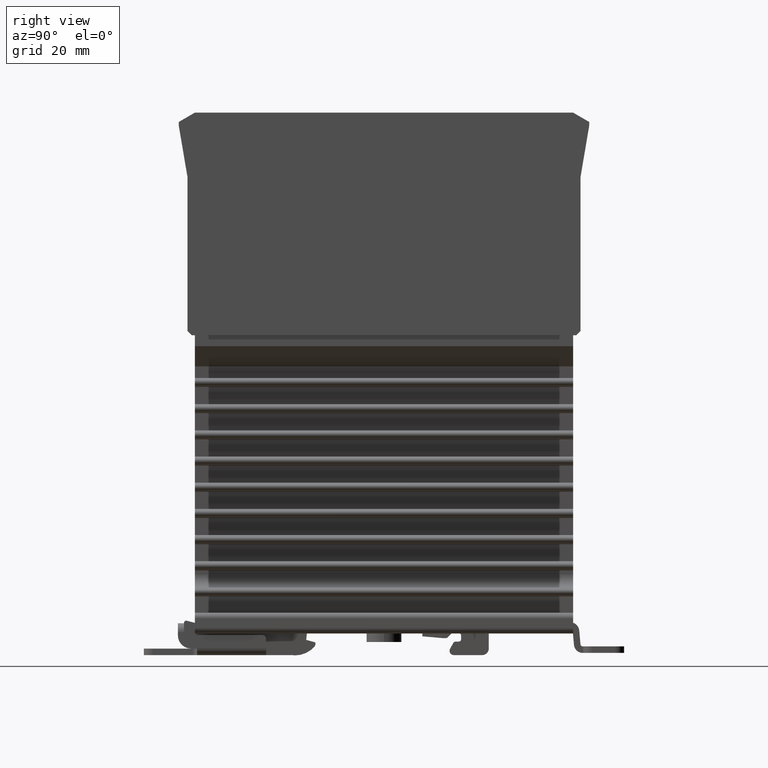
[diagram: clean part render]
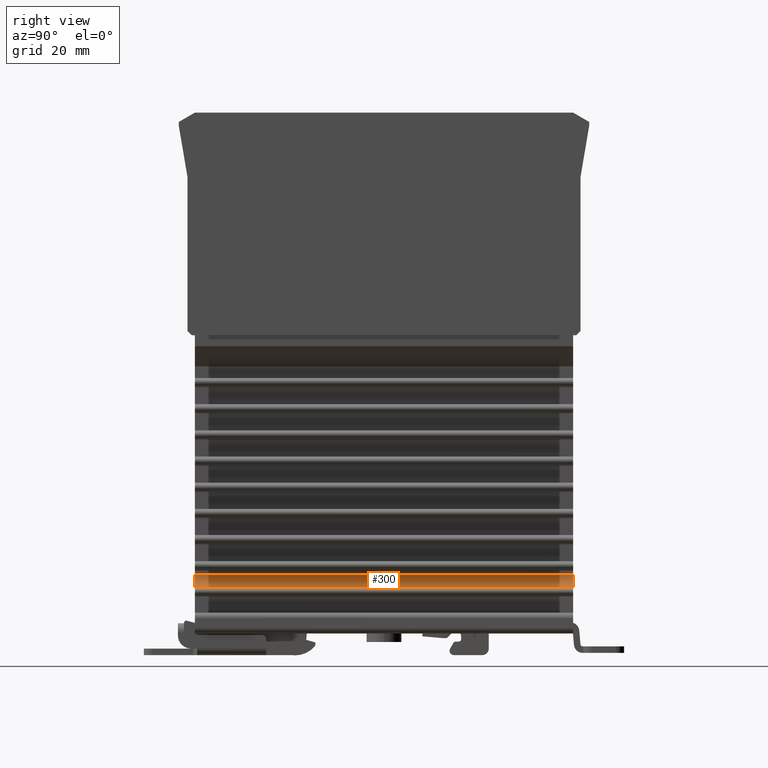
[diagram: same view with one face highlighted and labeled with its STEP entity id]
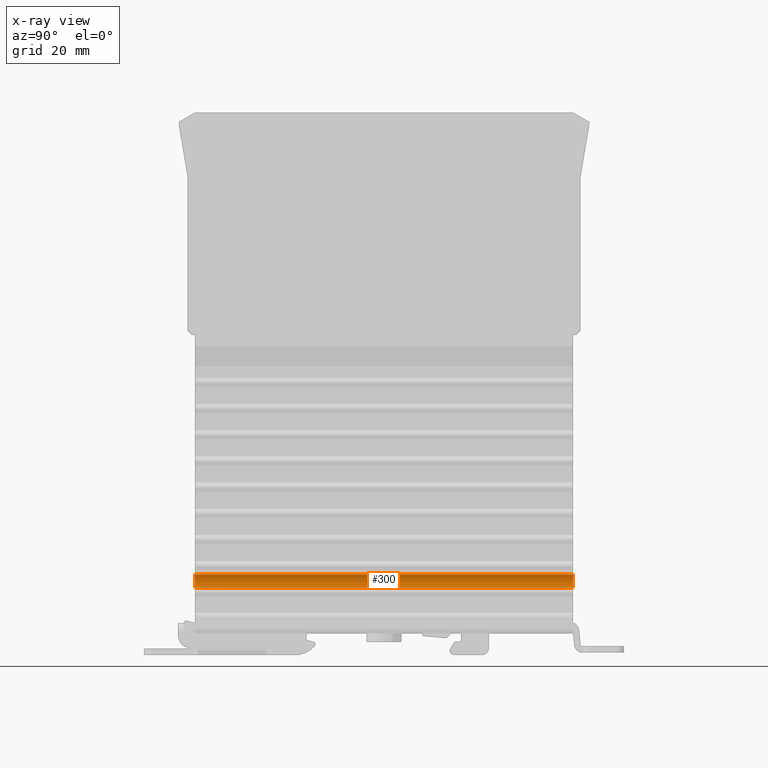
[diagram: x-ray of the same camera — body ghosted, the highlighted face saturated]
A machine part, right view. The second image highlights one B-rep face of the part: STEP entity #300.
The next image is the same camera in x-ray: the body ghosted, the highlighted face saturated — about 0% of this face is hidden behind the body in this view.
In plain terms, the highlighted cylindrical surface (edge-blend (fillet) strip) has radius 3 mm, axis along (0, 1, 0).
Its self-contained STEP definition (entity closure, byte-faithful):
#300 = ADVANCED_FACE ( 'NONE', ( #10707 ), #1838, .F. ) ;
#360 = CIRCLE ( 'NONE', #9558, 0.1181102362204725503 ) ;
#693 = DIRECTION ( 'NONE',  ( 0.000000000000000000, 0.000000000000000000, 1.000000000000000000 ) ) ;
#1571 = VERTEX_POINT ( 'NONE', #7965 ) ;
#1792 = CARTESIAN_POINT ( 'NONE',  ( 0.05252457940297086680, 1.704724409448818978, -2.158395281671881882 ) ) ;
#1838 = CYLINDRICAL_SURFACE ( 'NONE', #15429, 0.1181102362204725503 ) ;
#1999 = DIRECTION ( 'NONE',  ( 0.000000000000000000, 1.000000000000000000, 0.000000000000000000 ) ) ;
#2145 = EDGE_LOOP ( 'NONE', ( #10527, #13154, #13244, #8903 ) ) ;
#2183 = CARTESIAN_POINT ( 'NONE',  ( 0.1705628660587696632, -1.704724409448818978, -2.162517269471389891 ) ) ;
#2903 = CARTESIAN_POINT ( 'NONE',  ( 0.1378022468257801003, 0.5682414698162751021, -2.275791481839859021 ) ) ;
#3089 = VECTOR ( 'NONE', #9542, 39.37007874015748143 ) ;
#3968 = CARTESIAN_POINT ( 'NONE',  ( 0.1378022468257801003, -0.5682414698162718825, -2.275791481839859021 ) ) ;
#4383 = EDGE_CURVE ( 'NONE', #12443, #9986, #4519, .T. ) ;
#4519 = CIRCLE ( 'NONE', #5827, 0.1181102362204725503 ) ;
#4524 = CARTESIAN_POINT ( 'NONE',  ( 0.05252457940297094313, 0.000000000000000000, -2.158395281671881882 ) ) ;
#5411 = CARTESIAN_POINT ( 'NONE',  ( 0.1377987612081647828, 1.704724409448818978, -2.275891296868720381 ) ) ;
#5542 = CARTESIAN_POINT ( 'NONE',  ( 0.1705628660587696632, 1.704724409448818978, -2.162517269471389891 ) ) ;
#5827 = AXIS2_PLACEMENT_3D ( 'NONE', #5542, #14356, #693 ) ;
#6271 = VERTEX_POINT ( 'NONE', #14556 ) ;
#7181 = DIRECTION ( 'NONE',  ( 0.000000000000000000, 1.000000000000000000, 0.000000000000000000 ) ) ;
#7965 = CARTESIAN_POINT ( 'NONE',  ( 0.1377987612081647828, -1.704724409448818978, -2.275891296868720381 ) ) ;
#8903 = ORIENTED_EDGE ( 'NONE', *, *, #4383, .T. ) ;
#9311 = DIRECTION ( 'NONE',  ( 0.000000000000000000, 0.000000000000000000, 1.000000000000000000 ) ) ;
#9542 = DIRECTION ( 'NONE',  ( 0.000000000000000000, 1.000000000000000000, 0.000000000000000000 ) ) ;
#9558 = AXIS2_PLACEMENT_3D ( 'NONE', #2183, #7181, #12212 ) ;
#9986 = VERTEX_POINT ( 'NONE', #1792 ) ;
#10527 = ORIENTED_EDGE ( 'NONE', *, *, #15784, .F. ) ;
#10707 = FACE_OUTER_BOUND ( 'NONE', #2145, .T. ) ;
#11095 = EDGE_CURVE ( 'NONE', #12443, #1571, #14643, .T. ) ;
#11708 = EDGE_CURVE ( 'NONE', #1571, #6271, #360, .T. ) ;
#12212 = DIRECTION ( 'NONE',  ( 0.000000000000000000, 0.000000000000000000, 1.000000000000000000 ) ) ;
#12443 = VERTEX_POINT ( 'NONE', #5411 ) ;
#12836 = CARTESIAN_POINT ( 'NONE',  ( 0.1377987612081647828, 1.704724409448818978, -2.275891296868720381 ) ) ;
#13154 = ORIENTED_EDGE ( 'NONE', *, *, #11708, .F. ) ;
#13244 = ORIENTED_EDGE ( 'NONE', *, *, #11095, .F. ) ;
#13989 = CARTESIAN_POINT ( 'NONE',  ( 0.1377987612081647828, -1.704724409448818978, -2.275891296868720381 ) ) ;
#14356 = DIRECTION ( 'NONE',  ( 0.000000000000000000, 1.000000000000000000, 0.000000000000000000 ) ) ;
#14556 = CARTESIAN_POINT ( 'NONE',  ( 0.05252457940297086680, -1.704724409448818978, -2.158395281671881882 ) ) ;
#14643 = B_SPLINE_CURVE_WITH_KNOTS ( 'NONE', 3,
 ( #12836, #2903, #3968, #13989 ),
 .UNSPECIFIED., .F., .F.,
 ( 4, 4 ),
 ( 0.000000000000000000, 1.000000000000000000 ),
 .UNSPECIFIED. ) ;
#15429 = AXIS2_PLACEMENT_3D ( 'NONE', #15569, #1999, #9311 ) ;
#15569 = CARTESIAN_POINT ( 'NONE',  ( 0.1705628660587696632, 0.000000000000000000, -2.162517269471389891 ) ) ;
#15784 = EDGE_CURVE ( 'NONE', #6271, #9986, #15799, .T. ) ;
#15799 = LINE ( 'NONE', #4524, #3089 ) ;